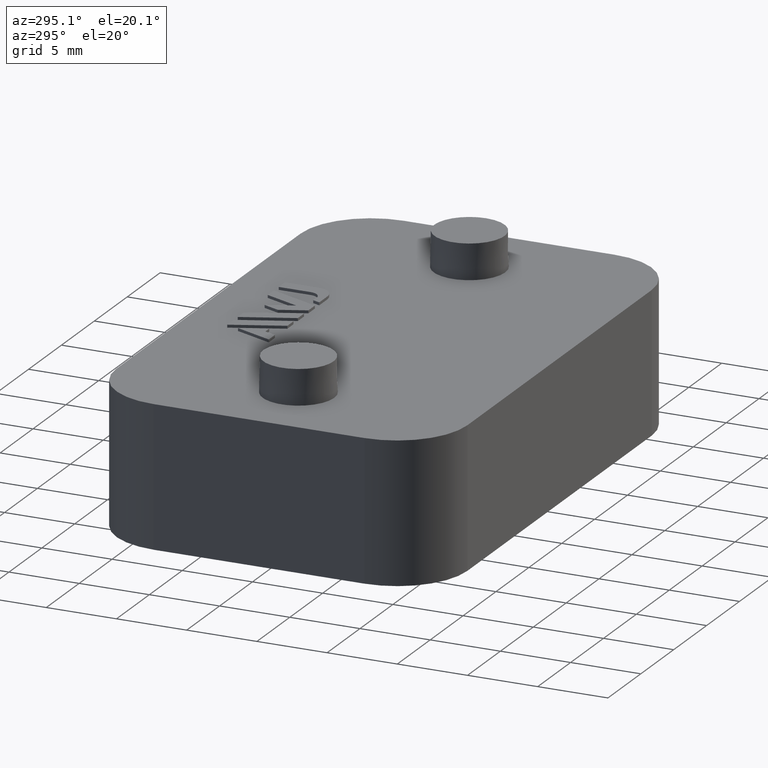
[diagram: clean part render]
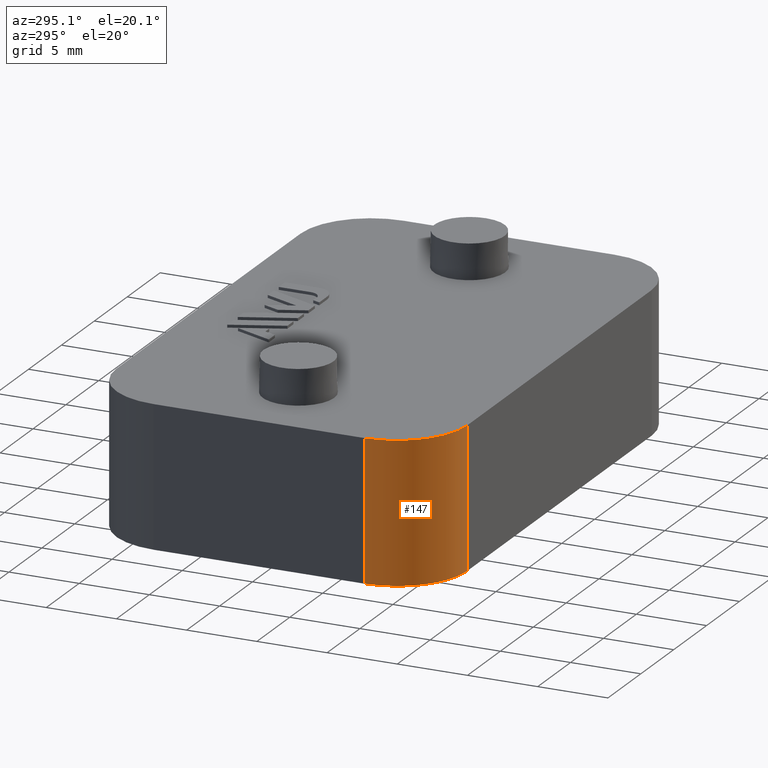
[diagram: same view with one face highlighted and labeled with its STEP entity id]
A machine part, auxiliary view. The second image highlights one B-rep face of the part: STEP entity #147.
In plain terms, the highlighted cylindrical surface (partial cylindrical patch) has radius 5 mm, axis along (-0, 0, 1).
Its self-contained STEP definition (entity closure, byte-faithful):
#147 = ADVANCED_FACE( '', ( #482 ), #483, .T. );
#482 = FACE_OUTER_BOUND( '', #970, .T. );
#483 = CYLINDRICAL_SURFACE( '', #971, 5.00000000000000 );
#970 = EDGE_LOOP( '', ( #2014, #2015, #2016, #2017 ) );
#971 = AXIS2_PLACEMENT_3D( '', #2018, #2019, #2020 );
#2014 = ORIENTED_EDGE( '', *, *, #3360, .T. );
#2015 = ORIENTED_EDGE( '', *, *, #3141, .F. );
#2016 = ORIENTED_EDGE( '', *, *, #3131, .F. );
#2017 = ORIENTED_EDGE( '', *, *, #3107, .T. );
#2018 = CARTESIAN_POINT( '', ( -14.0000000000000, -7.50000000000000, 78.1566861179890 ) );
#2019 = DIRECTION( '', ( -1.60751816480226E-016, 1.81794180051289E-016, 1.00000000000000 ) );
#2020 = DIRECTION( '', ( -1.00000000000000, 2.31296463463574E-016, -1.60751816480226E-016 ) );
#3107 = EDGE_CURVE( '', #3691, #3689, #3692, .T. );
#3131 = EDGE_CURVE( '', #3691, #3738, #3739, .T. );
#3141 = EDGE_CURVE( '', #3738, #3755, #3756, .T. );
#3360 = EDGE_CURVE( '', #3689, #3755, #4166, .T. );
#3689 = VERTEX_POINT( '', #4649 );
#3691 = VERTEX_POINT( '', #4652 );
#3692 = CIRCLE( '', #4653, 5.00000000000000 );
#3738 = VERTEX_POINT( '', #4717 );
#3739 = LINE( '', #4718, #4719 );
#3755 = VERTEX_POINT( '', #4742 );
#3756 = CIRCLE( '', #4743, 5.00000000000000 );
#4166 = LINE( '', #5368, #5369 );
#4649 = CARTESIAN_POINT( '', ( -19.0000000000000, -7.50000000000003, 9.99999999999999 ) );
#4652 = CARTESIAN_POINT( '', ( -14.0000000000000, -12.5000000000000, 9.99999999999999 ) );
#4653 = AXIS2_PLACEMENT_3D( '', #6127, #6128, #6129 );
#4717 = CARTESIAN_POINT( '', ( -14.0000000000000, -12.5000000000000, -6.17351493276824E-015 ) );
#4718 = CARTESIAN_POINT( '', ( -14.0000000000000, -12.5000000000000, 78.1566861179890 ) );
#4719 = VECTOR( '', #6163, 1000.00000000000 );
#4742 = CARTESIAN_POINT( '', ( -19.0000000000000, -7.50000000000003, -6.47966652122383E-015 ) );
#4743 = AXIS2_PLACEMENT_3D( '', #6177, #6178, #6179 );
#5368 = CARTESIAN_POINT( '', ( -19.0000000000000, -7.50000000000000, 78.1566861179890 ) );
#5369 = VECTOR( '', #6404, 1000.00000000000 );
#6127 = CARTESIAN_POINT( '', ( -14.0000000000000, -7.50000000000001, 10.0000000000000 ) );
#6128 = DIRECTION( '', ( 0.000000000000000, -6.12303176911189E-017, -1.00000000000000 ) );
#6129 = DIRECTION( '', ( 0.000000000000000, 1.00000000000000, -6.12303176911189E-017 ) );
#6163 = DIRECTION( '', ( 1.60751816480226E-016, -1.81794180051289E-016, -1.00000000000000 ) );
#6177 = CARTESIAN_POINT( '', ( -14.0000000000000, -7.50000000000002, -6.47966652122384E-015 ) );
#6178 = DIRECTION( '', ( 0.000000000000000, -6.12303176911189E-017, -1.00000000000000 ) );
#6179 = DIRECTION( '', ( 0.000000000000000, 1.00000000000000, -6.12303176911189E-017 ) );
#6404 = DIRECTION( '', ( 1.60751816480226E-016, -1.81794180051289E-016, -1.00000000000000 ) );